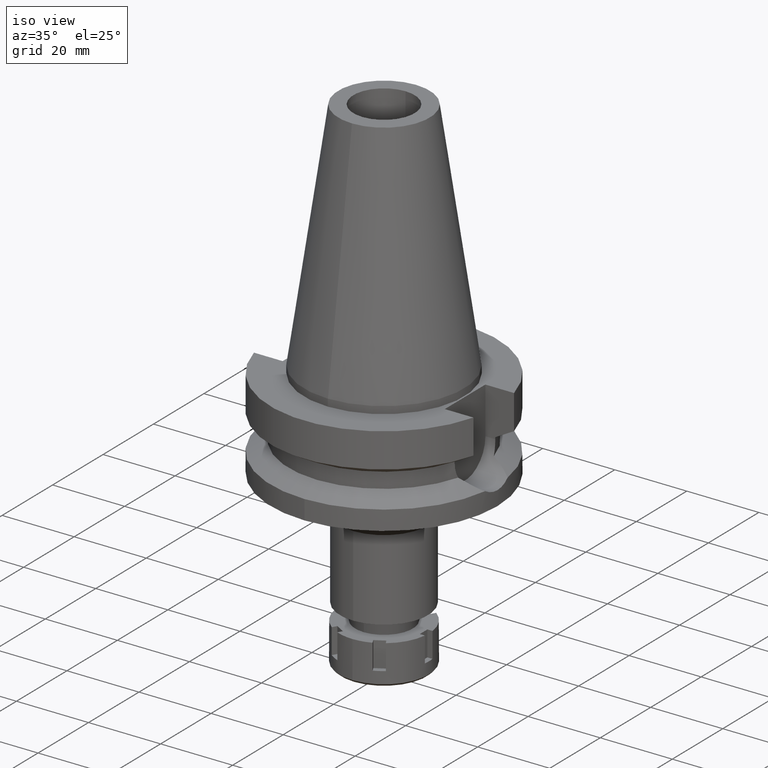
[diagram: clean part render]
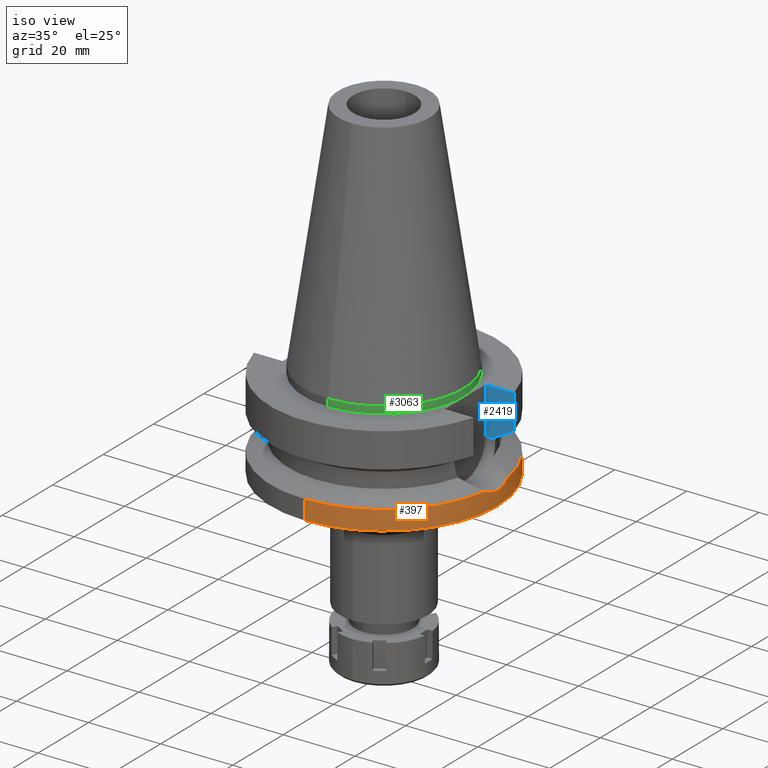
[diagram: same view with three faces highlighted in distinct colors, each labeled with its STEP entity id]
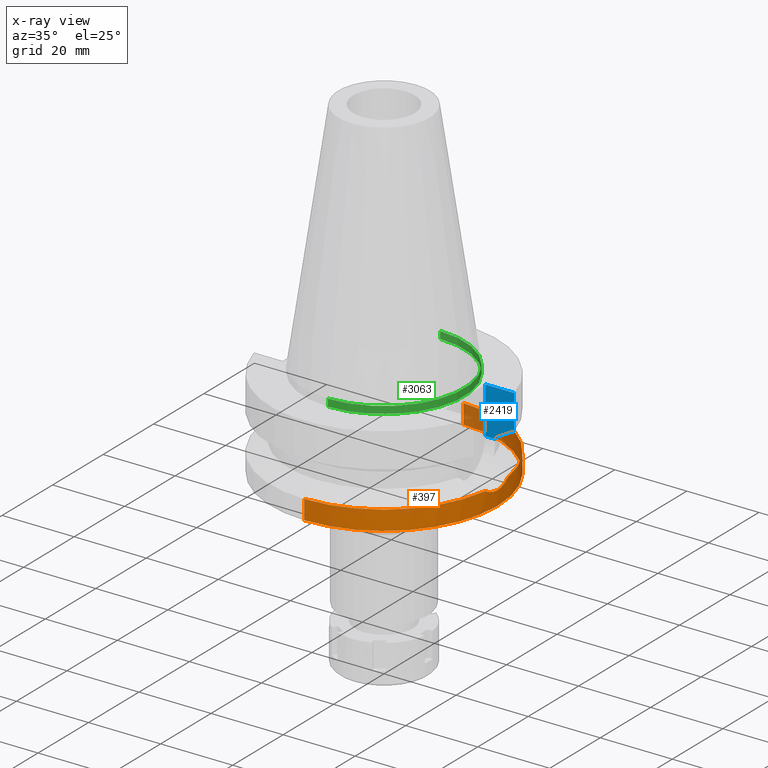
[diagram: x-ray of the same camera — body ghosted, the three highlighted faces saturated]
A machine part, iso view with three faces highlighted in distinct colors.
The next image is the same camera in x-ray (body ghosted, the three faces saturated) — at least one of them is partly hidden behind the body in this view.
Their STEP definitions:

[orange] entity #397 — the highlighted cylindrical surface (partial cylindrical patch) has radius 31.5 mm, axis along (0, 0, -1).
#34 = CARTESIAN_POINT ( 'NONE',  ( 31.50000000000000711, 0.3825415465211001731, -23.00000000000000355 ) ) ;
#102 = DIRECTION ( 'NONE',  ( 0.0000000000000000000, 0.0000000000000000000, -1.000000000000000000 ) ) ;
#115 = DIRECTION ( 'NONE',  ( 0.0000000000000000000, 0.0000000000000000000, -1.000000000000000000 ) ) ;
#124 = ORIENTED_EDGE ( 'NONE', *, *, #453, .T. ) ;
#143 = EDGE_CURVE ( 'NONE', #1192, #1965, #2766, .T. ) ;
#152 = CARTESIAN_POINT ( 'NONE',  ( 31.50000000000000000, -0.7651554277986538644, -23.00000000000000355 ) ) ;
#168 = CARTESIAN_POINT ( 'NONE',  ( 31.36328283750654222, 3.007832629294917126, -22.45025453251315639 ) ) ;
#185 = ORIENTED_EDGE ( 'NONE', *, *, #2796, .F. ) ;
#281 = CARTESIAN_POINT ( 'NONE',  ( 31.44589798759551869, 1.844932280713035944, -22.78637270911125512 ) ) ;
#345 = CARTESIAN_POINT ( 'NONE',  ( 0.0000000000000000000, 2.107862070691999752E-14, -27.00000000000000000 ) ) ;
#381 = CARTESIAN_POINT ( 'NONE',  ( 0.0000000000000000000, -31.50000000000000000, -21.63449434733000132 ) ) ;
#397 = ADVANCED_FACE ( 'NONE', ( #919 ), #1504, .T. ) ;
#431 = VERTEX_POINT ( 'NONE', #647 ) ;
#453 = EDGE_CURVE ( 'NONE', #1965, #431, #2613, .T. ) ;
#471 = CIRCLE ( 'NONE', #3577, 31.50000000000000000 ) ;
#542 = VERTEX_POINT ( 'NONE', #1577 ) ;
#647 = CARTESIAN_POINT ( 'NONE',  ( 0.0000000000000000000, -31.50000000000000000, -27.00000000000000000 ) ) ;
#694 = ORIENTED_EDGE ( 'NONE', *, *, #143, .T. ) ;
#760 = CARTESIAN_POINT ( 'NONE',  ( 31.33673721229786935, -3.204096010765037139, -22.33755624022095532 ) ) ;
#787 = VERTEX_POINT ( 'NONE', #2793 ) ;
#792 = CARTESIAN_POINT ( 'NONE',  ( 31.41252693101175808, -2.344406219094101740, -22.65106619707228930 ) ) ;
#919 = FACE_OUTER_BOUND ( 'NONE', #1676, .T. ) ;
#931 = VECTOR ( 'NONE', #2722, 1000.000000000000000 ) ;
#1026 = CARTESIAN_POINT ( 'NONE',  ( 31.23206219153123087, -4.116692004157903817, -21.88200209874065649 ) ) ;
#1142 = ORIENTED_EDGE ( 'NONE', *, *, #1871, .F. ) ;
#1191 = CARTESIAN_POINT ( 'NONE',  ( 31.28513683615228302, 3.747769718706953412, -22.12956222722735689 ) ) ;
#1192 = VERTEX_POINT ( 'NONE', #2397 ) ;
#1209 = CARTESIAN_POINT ( 'NONE',  ( 31.42566608920675009, 2.161912855977822456, -22.70455434713332110 ) ) ;
#1239 = DIRECTION ( 'NONE',  ( 0.0000000000000000000, -1.000000000000000000, 0.0000000000000000000 ) ) ;
#1252 = B_SPLINE_CURVE_WITH_KNOTS ( 'NONE', 3,
 ( #1344, #1026, #2468, #760, #2178, #1593, #2685, #2437, #3583, #1641, #2194, #792, #2975, #152, #2485 ),
 .UNSPECIFIED., .F., .F.,
 ( 4, 2, 2, 1, 1, 1, 2, 2, 4 ),
 ( 0.0000000000000000000, 0.2499999999999839018, 0.3749999999999754086, 0.4374999999999717448, 0.4687499999999699130, 0.4843749999999697464, 0.4921874999999700240, 0.4999999999999702460, 1.000000000000000000 ),
 .UNSPECIFIED. ) ;
#1277 = ORIENTED_EDGE ( 'NONE', *, *, #3139, .T. ) ;
#1303 = CARTESIAN_POINT ( 'NONE',  ( 0.0000000000000000000, 0.0000000000000000000, -21.63449434733000132 ) ) ;
#1344 = CARTESIAN_POINT ( 'NONE',  ( 31.17899877608999759, -4.485536235554000051, -21.63449434733000132 ) ) ;
#1358 = ORIENTED_EDGE ( 'NONE', *, *, #2658, .T. ) ;
#1375 = CARTESIAN_POINT ( 'NONE',  ( 0.0000000000000000000, 31.50000000000000000, -21.63449434733000132 ) ) ;
#1395 = EDGE_CURVE ( 'NONE', #2839, #542, #2045, .T. ) ;
#1407 = AXIS2_PLACEMENT_3D ( 'NONE', #345, #1483, #1806 ) ;
#1427 = ORIENTED_EDGE ( 'NONE', *, *, #1395, .F. ) ;
#1430 = CARTESIAN_POINT ( 'NONE',  ( 0.0000000000000000000, -31.50000000000000000, -21.63449434733000132 ) ) ;
#1483 = DIRECTION ( 'NONE',  ( 0.0000000000000000000, 0.0000000000000000000, 1.000000000000000000 ) ) ;
#1498 = CARTESIAN_POINT ( 'NONE',  ( 31.17899877608999759, 4.485536235554000051, -21.63449434733000132 ) ) ;
#1504 = CYLINDRICAL_SURFACE ( 'NONE', #2304, 31.50000000000000000 ) ;
#1577 = CARTESIAN_POINT ( 'NONE',  ( 31.17899877608999759, 4.485536235554000051, -21.63449434733000132 ) ) ;
#1593 = CARTESIAN_POINT ( 'NONE',  ( 31.37858090349254780, -2.761758643897048504, -22.51201132447889108 ) ) ;
#1641 = CARTESIAN_POINT ( 'NONE',  ( 31.41025956845984979, -2.374562833021813812, -22.64181864169021807 ) ) ;
#1676 = EDGE_LOOP ( 'NONE', ( #694, #124, #1358, #1142, #1277, #1427, #185 ) ) ;
#1736 = CARTESIAN_POINT ( 'NONE',  ( 0.0000000000000000000, 2.107862070691999752E-14, 72.12000000000000455 ) ) ;
#1768 = CARTESIAN_POINT ( 'NONE',  ( 31.41965005813989720, 2.247072451142771321, -22.68008986001225935 ) ) ;
#1806 = DIRECTION ( 'NONE',  ( 0.0000000000000000000, -1.000000000000000000, 0.0000000000000000000 ) ) ;
#1871 = EDGE_CURVE ( 'NONE', #3182, #787, #2992, .T. ) ;
#1965 = VERTEX_POINT ( 'NONE', #1430 ) ;
#2024 = CARTESIAN_POINT ( 'NONE',  ( 31.47114559338428563, 1.356374570639935051, -22.88735630181176361 ) ) ;
#2040 = CARTESIAN_POINT ( 'NONE',  ( 31.46212859131684780, 1.551903289698909116, -22.85152805509820695 ) ) ;
#2045 = B_SPLINE_CURVE_WITH_KNOTS ( 'NONE', 3,
 ( #2553, #34, #2062, #2024, #2040, #281, #2281, #1209, #1768, #3173, #3132, #2336, #168, #1191, #1498 ),
 .UNSPECIFIED., .F., .F.,
 ( 4, 2, 2, 1, 1, 1, 2, 2, 4 ),
 ( 0.0000000000000000000, 0.2499999999999997780, 0.3749999999999997780, 0.4374999999999998335, 0.4687499999999996669, 0.4843749999999996114, 0.4921874999999994449, 0.4999999999999992784, 1.000000000000000000 ),
 .UNSPECIFIED. ) ;
#2062 = CARTESIAN_POINT ( 'NONE',  ( 31.49278639834608029, 0.7710438198738367443, -22.97268655619752664 ) ) ;
#2178 = CARTESIAN_POINT ( 'NONE',  ( 31.35452407069460534, -3.025350769021502018, -22.41224209196735373 ) ) ;
#2194 = CARTESIAN_POINT ( 'NONE',  ( 31.41185438971429988, -2.353388662203476756, -22.64832348432008047 ) ) ;
#2281 = CARTESIAN_POINT ( 'NONE',  ( 31.43710641057976929, 1.991379779862099575, -22.75094280094293353 ) ) ;
#2287 = CIRCLE ( 'NONE', #1407, 31.50000000000000000 ) ;
#2288 = DIRECTION ( 'NONE',  ( 0.0000000000000000000, -1.105773104655000034E-13, -1.000000000000000000 ) ) ;
#2304 = AXIS2_PLACEMENT_3D ( 'NONE', #1736, #102, #1239 ) ;
#2336 = CARTESIAN_POINT ( 'NONE',  ( 31.41422043550664966, 2.321593114301650829, -22.65797165830639770 ) ) ;
#2397 = CARTESIAN_POINT ( 'NONE',  ( 31.17899877608999759, -4.485536235554000051, -21.63449434733000132 ) ) ;
#2437 = CARTESIAN_POINT ( 'NONE',  ( 31.40207367286809159, -2.480881812682838472, -22.60840945400003221 ) ) ;
#2468 = CARTESIAN_POINT ( 'NONE',  ( 31.27812972751334186, -3.746556030875545229, -22.08615384517614544 ) ) ;
#2485 = CARTESIAN_POINT ( 'NONE',  ( 31.50000000000000000, 0.0000000000000000000, -23.00000000000000000 ) ) ;
#2553 = CARTESIAN_POINT ( 'NONE',  ( 31.50000000000000000, 0.0000000000000000000, -23.00000000000000000 ) ) ;
#2592 = VECTOR ( 'NONE', #2288, 1000.000000000000000 ) ;
#2613 = LINE ( 'NONE', #381, #2592 ) ;
#2658 = EDGE_CURVE ( 'NONE', #431, #787, #2287, .T. ) ;
#2679 = DIRECTION ( 'NONE',  ( 0.0000000000000000000, 0.0000000000000000000, -1.000000000000000000 ) ) ;
#2685 = CARTESIAN_POINT ( 'NONE',  ( 31.38995345619222022, -2.631089804649095143, -22.55883194680322035 ) ) ;
#2712 = AXIS2_PLACEMENT_3D ( 'NONE', #1303, #2679, #3248 ) ;
#2722 = DIRECTION ( 'NONE',  ( 0.0000000000000000000, 1.099151708819000049E-13, -1.000000000000000000 ) ) ;
#2766 = CIRCLE ( 'NONE', #2712, 31.50000000000001421 ) ;
#2793 = CARTESIAN_POINT ( 'NONE',  ( 0.0000000000000000000, 31.50000000000000000, -27.00000000000000000 ) ) ;
#2796 = EDGE_CURVE ( 'NONE', #1192, #2839, #1252, .T. ) ;
#2839 = VERTEX_POINT ( 'NONE', #3389 ) ;
#2975 = CARTESIAN_POINT ( 'NONE',  ( 31.47114290507603585, -1.554796664058285316, -22.89008434550864024 ) ) ;
#2992 = LINE ( 'NONE', #1375, #931 ) ;
#3132 = CARTESIAN_POINT ( 'NONE',  ( 31.41523313603342160, 2.307851765051512238, -22.66209965112089719 ) ) ;
#3139 = EDGE_CURVE ( 'NONE', #3182, #542, #471, .T. ) ;
#3172 = CARTESIAN_POINT ( 'NONE',  ( 0.0000000000000000000, 0.0000000000000000000, -21.63449434733000132 ) ) ;
#3173 = CARTESIAN_POINT ( 'NONE',  ( 31.41700835831544936, 2.283543664145477159, -22.66933216879617419 ) ) ;
#3182 = VERTEX_POINT ( 'NONE', #3559 ) ;
#3248 = DIRECTION ( 'NONE',  ( 0.9898094849552905306, -0.1423979757318985240, 0.0000000000000000000 ) ) ;
#3389 = CARTESIAN_POINT ( 'NONE',  ( 31.50000000000000000, 0.0000000000000000000, -23.00000000000000000 ) ) ;
#3488 = DIRECTION ( 'NONE',  ( 0.0000000000000000000, 1.000000000000000000, 0.0000000000000000000 ) ) ;
#3559 = CARTESIAN_POINT ( 'NONE',  ( 0.0000000000000000000, 31.50000000000000000, -21.63449434733000132 ) ) ;
#3577 = AXIS2_PLACEMENT_3D ( 'NONE', #3172, #115, #3488 ) ;
#3583 = CARTESIAN_POINT ( 'NONE',  ( 31.40784684083758194, -2.406367806485769201, -22.63197621432086848 ) ) ;

[blue] entity #2419 — the highlighted planar face has unit normal (0, 1, 0).
#4 = DIRECTION ( 'NONE',  ( 0.0000000000000000000, 0.0000000000000000000, -1.000000000000000000 ) ) ;
#60 = LINE ( 'NONE', #365, #1214 ) ;
#216 = AXIS2_PLACEMENT_3D ( 'NONE', #1734, #1959, #3081 ) ;
#247 = VERTEX_POINT ( 'NONE', #3084 ) ;
#365 = CARTESIAN_POINT ( 'NONE',  ( 22.50000000000000000, 8.050000000000000711, -2.000000000000000000 ) ) ;
#377 = EDGE_CURVE ( 'NONE', #1044, #2480, #799, .T. ) ;
#491 = CARTESIAN_POINT ( 'NONE',  ( 25.24772413624999956, 8.049995399978000066, -14.45229214878999890 ) ) ;
#586 = CARTESIAN_POINT ( 'NONE',  ( 22.50000000000000000, 8.050000000000000711, -14.94999999999999929 ) ) ;
#677 = CARTESIAN_POINT ( 'NONE',  ( 28.57292312511690469, 8.049998544630264874, -12.61549614945663755 ) ) ;
#713 = CARTESIAN_POINT ( 'NONE',  ( 30.45402291526000127, 8.049999271842001036, -11.56551221103000060 ) ) ;
#761 = CARTESIAN_POINT ( 'NONE',  ( 22.50000000000000000, 8.050000000000000711, -2.000000000000000000 ) ) ;
#799 = LINE ( 'NONE', #2543, #1364 ) ;
#847 = EDGE_CURVE ( 'NONE', #2480, #952, #1139, .T. ) ;
#848 = FACE_OUTER_BOUND ( 'NONE', #2770, .T. ) ;
#883 = EDGE_CURVE ( 'NONE', #1044, #247, #60, .T. ) ;
#952 = VERTEX_POINT ( 'NONE', #2340 ) ;
#1044 = VERTEX_POINT ( 'NONE', #761 ) ;
#1046 = VECTOR ( 'NONE', #3308, 1000.000000000000000 ) ;
#1048 = CARTESIAN_POINT ( 'NONE',  ( 25.24772266958000344, 8.050000000000000711, -14.94999999999999929 ) ) ;
#1077 = LINE ( 'NONE', #3358, #1342 ) ;
#1078 = CARTESIAN_POINT ( 'NONE',  ( 22.50000000000000000, 8.050000000000000711, -14.94999999999999929 ) ) ;
#1139 = LINE ( 'NONE', #1078, #1046 ) ;
#1196 = EDGE_CURVE ( 'NONE', #2356, #247, #1077, .T. ) ;
#1214 = VECTOR ( 'NONE', #3102, 1000.000000000000000 ) ;
#1329 = VERTEX_POINT ( 'NONE', #491 ) ;
#1342 = VECTOR ( 'NONE', #3043, 1000.000000000000000 ) ;
#1364 = VECTOR ( 'NONE', #4, 1000.000000000000000 ) ;
#1572 = CARTESIAN_POINT ( 'NONE',  ( 26.83754598860085849, 8.049990789768170174, -13.57774898075737724 ) ) ;
#1621 = EDGE_CURVE ( 'NONE', #2356, #1329, #2670, .T. ) ;
#1734 = CARTESIAN_POINT ( 'NONE',  ( 22.50000000000000000, 8.050000000000000711, -14.94999999999999929 ) ) ;
#1756 = ORIENTED_EDGE ( 'NONE', *, *, #1621, .F. ) ;
#1820 = ORIENTED_EDGE ( 'NONE', *, *, #883, .F. ) ;
#1839 = ORIENTED_EDGE ( 'NONE', *, *, #377, .T. ) ;
#1843 = CARTESIAN_POINT ( 'NONE',  ( 30.45402291526000127, 8.049999271842001036, -11.56551221103000060 ) ) ;
#1879 = LINE ( 'NONE', #1048, #2354 ) ;
#1959 = DIRECTION ( 'NONE',  ( -0.0000000000000000000, 1.000000000000000000, 0.0000000000000000000 ) ) ;
#2260 = ORIENTED_EDGE ( 'NONE', *, *, #847, .T. ) ;
#2340 = CARTESIAN_POINT ( 'NONE',  ( 25.24772266958000344, 8.050000000000000711, -14.94999999999999929 ) ) ;
#2354 = VECTOR ( 'NONE', #3286, 1000.000000000000227 ) ;
#2356 = VERTEX_POINT ( 'NONE', #713 ) ;
#2419 = ADVANCED_FACE ( 'NONE', ( #848 ), #2556, .F. ) ;
#2480 = VERTEX_POINT ( 'NONE', #586 ) ;
#2543 = CARTESIAN_POINT ( 'NONE',  ( 22.50000000000000000, 8.050000000000000711, -2.000000000000000000 ) ) ;
#2556 = PLANE ( 'NONE',  #216 ) ;
#2626 = CARTESIAN_POINT ( 'NONE',  ( 25.24772413624999956, 8.049995399978000066, -14.45229214878999890 ) ) ;
#2670 = B_SPLINE_CURVE_WITH_KNOTS ( 'NONE', 3,
 ( #1843, #677, #1572, #2626 ),
 .UNSPECIFIED., .F., .F.,
 ( 4, 4 ),
 ( 0.0000000000000000000, 1.000000000000000000 ),
 .UNSPECIFIED. ) ;
#2718 = ORIENTED_EDGE ( 'NONE', *, *, #3187, .T. ) ;
#2770 = EDGE_LOOP ( 'NONE', ( #1756, #2854, #1820, #1839, #2260, #2718 ) ) ;
#2854 = ORIENTED_EDGE ( 'NONE', *, *, #1196, .T. ) ;
#3043 = DIRECTION ( 'NONE',  ( -2.012181402812988813E-08, 7.612326853770945087E-08, 0.9999999999999968914 ) ) ;
#3081 = DIRECTION ( 'NONE',  ( 1.000000000000000000, 0.0000000000000000000, 0.0000000000000000000 ) ) ;
#3084 = CARTESIAN_POINT ( 'NONE',  ( 30.45402272279000044, 8.050000000000000711, -2.000000000000000000 ) ) ;
#3102 = DIRECTION ( 'NONE',  ( 1.000000000000000000, -3.506251283225999947E-14, 0.0000000000000000000 ) ) ;
#3187 = EDGE_CURVE ( 'NONE', #952, #1329, #1879, .T. ) ;
#3286 = DIRECTION ( 'NONE',  ( 2.946855179090138964E-06, -9.242413605690428337E-06, 0.9999999999529468608 ) ) ;
#3308 = DIRECTION ( 'NONE',  ( 1.000000000000000000, -1.551559937893000172E-14, 0.0000000000000000000 ) ) ;
#3358 = CARTESIAN_POINT ( 'NONE',  ( 30.45402291526000127, 8.049999271842001036, -11.56551221103000060 ) ) ;

[green] entity #3063 — the highlighted cylindrical surface (partial cylindrical patch) has radius 22.225 mm, axis along (0, 0, -1).
#71 = DIRECTION ( 'NONE',  ( 0.0000000000000000000, -1.000000000000000000, 0.0000000000000000000 ) ) ;
#88 = AXIS2_PLACEMENT_3D ( 'NONE', #3337, #1973, #831 ) ;
#543 = ORIENTED_EDGE ( 'NONE', *, *, #2499, .T. ) ;
#676 = DIRECTION ( 'NONE',  ( 0.0000000000000000000, -1.000000000000000000, 0.0000000000000000000 ) ) ;
#769 = ORIENTED_EDGE ( 'NONE', *, *, #811, .F. ) ;
#811 = EDGE_CURVE ( 'NONE', #2726, #1633, #2814, .T. ) ;
#815 = CIRCLE ( 'NONE', #1751, 22.22500000000000142 ) ;
#831 = DIRECTION ( 'NONE',  ( 0.0000000000000000000, 1.000000000000000000, 0.0000000000000000000 ) ) ;
#836 = CARTESIAN_POINT ( 'NONE',  ( 0.0000000000000000000, 22.22500000000000142, 7.815970093360999808E-14 ) ) ;
#864 = CARTESIAN_POINT ( 'NONE',  ( 0.0000000000000000000, -22.22500000000000142, 7.815970093360999808E-14 ) ) ;
#935 = CYLINDRICAL_SURFACE ( 'NONE', #2471, 22.22500000000000142 ) ;
#1123 = CARTESIAN_POINT ( 'NONE',  ( 0.0000000000000000000, -22.22500000000000142, 2.842170943039999687E-14 ) ) ;
#1300 = VERTEX_POINT ( 'NONE', #1123 ) ;
#1314 = EDGE_CURVE ( 'NONE', #2726, #1300, #2921, .T. ) ;
#1337 = VERTEX_POINT ( 'NONE', #3305 ) ;
#1633 = VERTEX_POINT ( 'NONE', #1788 ) ;
#1751 = AXIS2_PLACEMENT_3D ( 'NONE', #2275, #2603, #71 ) ;
#1788 = CARTESIAN_POINT ( 'NONE',  ( 0.0000000000000000000, 22.22500000000000142, -2.000000000000000000 ) ) ;
#1973 = DIRECTION ( 'NONE',  ( 0.0000000000000000000, 0.0000000000000000000, -1.000000000000000000 ) ) ;
#2016 = EDGE_LOOP ( 'NONE', ( #3342, #543, #2560, #769 ) ) ;
#2050 = EDGE_CURVE ( 'NONE', #1337, #1633, #815, .T. ) ;
#2081 = FACE_OUTER_BOUND ( 'NONE', #2016, .T. ) ;
#2275 = CARTESIAN_POINT ( 'NONE',  ( 0.0000000000000000000, 2.107862070691999752E-14, -2.000000000000000000 ) ) ;
#2471 = AXIS2_PLACEMENT_3D ( 'NONE', #3190, #2899, #676 ) ;
#2499 = EDGE_CURVE ( 'NONE', #1300, #1337, #2792, .T. ) ;
#2560 = ORIENTED_EDGE ( 'NONE', *, *, #2050, .T. ) ;
#2603 = DIRECTION ( 'NONE',  ( 0.0000000000000000000, 0.0000000000000000000, 1.000000000000000000 ) ) ;
#2726 = VERTEX_POINT ( 'NONE', #2923 ) ;
#2792 = LINE ( 'NONE', #864, #2990 ) ;
#2814 = LINE ( 'NONE', #836, #3439 ) ;
#2899 = DIRECTION ( 'NONE',  ( 0.0000000000000000000, 0.0000000000000000000, -1.000000000000000000 ) ) ;
#2921 = CIRCLE ( 'NONE', #88, 22.22500000000000142 ) ;
#2923 = CARTESIAN_POINT ( 'NONE',  ( 0.0000000000000000000, 22.22500000000000142, 7.105427357600999334E-14 ) ) ;
#2990 = VECTOR ( 'NONE', #3634, 1000.000000000000000 ) ;
#3063 = ADVANCED_FACE ( 'NONE', ( #2081 ), #935, .T. ) ;
#3190 = CARTESIAN_POINT ( 'NONE',  ( 0.0000000000000000000, 2.107862070691999752E-14, 72.12000000000000455 ) ) ;
#3305 = CARTESIAN_POINT ( 'NONE',  ( 0.0000000000000000000, -22.22500000000000142, -2.000000000000000000 ) ) ;
#3337 = CARTESIAN_POINT ( 'NONE',  ( 0.0000000000000000000, 1.625106302469000024E-14, 2.842170943039999687E-14 ) ) ;
#3342 = ORIENTED_EDGE ( 'NONE', *, *, #1314, .T. ) ;
#3439 = VECTOR ( 'NONE', #3589, 1000.000000000000000 ) ;
#3589 = DIRECTION ( 'NONE',  ( 0.0000000000000000000, 8.171241461240999414E-14, -1.000000000000000000 ) ) ;
#3634 = DIRECTION ( 'NONE',  ( 0.0000000000000000000, -8.704148513061000085E-14, -1.000000000000000000 ) ) ;